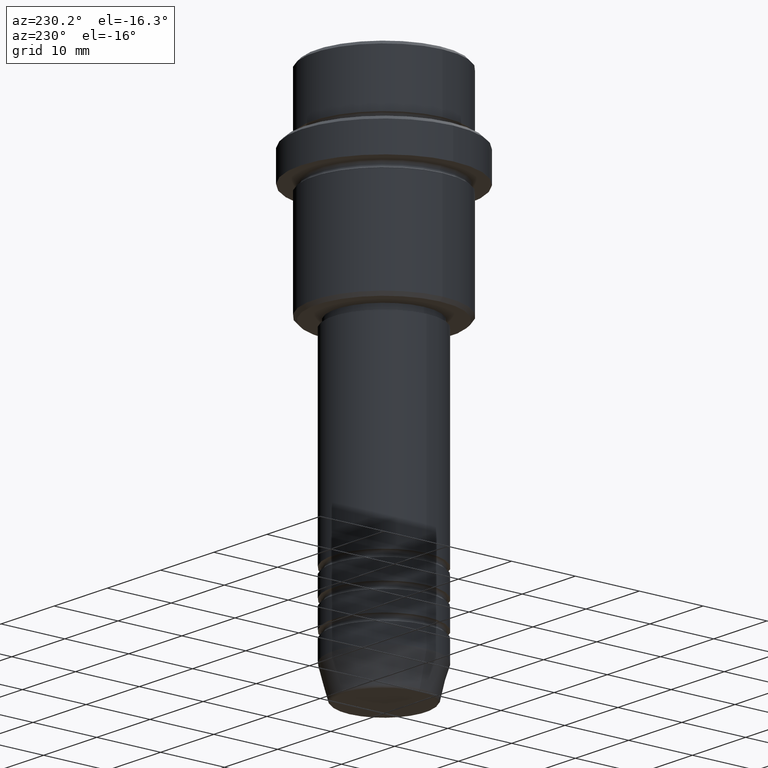
[diagram: clean part render]
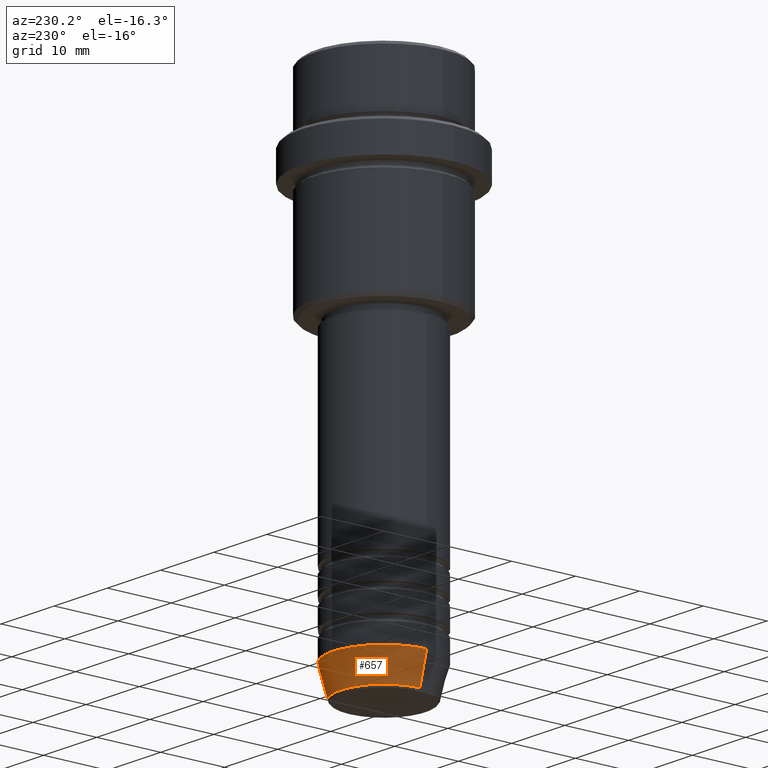
[diagram: same view with one face highlighted and labeled with its STEP entity id]
A machine part, auxiliary view. The second image highlights one B-rep face of the part: STEP entity #657.
In plain terms, the highlighted conical surface has half-angle 15 deg.
Its self-contained STEP definition (entity closure, byte-faithful):
#10 = CARTESIAN_POINT ( 'NONE',  ( -8.000000000000000000, 9.797174393178825657E-16, -75.00000000000001421 ) ) ;
#15 = VERTEX_POINT ( 'NONE', #431 ) ;
#29 = VECTOR ( 'NONE', #825, 1000.000000000000000 ) ;
#51 = VERTEX_POINT ( 'NONE', #661 ) ;
#73 = DIRECTION ( 'NONE',  ( -0.000000000000000000, -0.000000000000000000, 1.000000000000000000 ) ) ;
#100 = EDGE_LOOP ( 'NONE', ( #848, #1004, #755, #746 ) ) ;
#101 = VECTOR ( 'NONE', #1274, 1000.000000000000000 ) ;
#195 = LINE ( 'NONE', #1264, #29 ) ;
#246 = EDGE_CURVE ( 'NONE', #51, #481, #1128, .T. ) ;
#381 = CARTESIAN_POINT ( 'NONE',  ( -8.000000000000000000, 9.797174393178825657E-16, -75.00000000000001421 ) ) ;
#402 = LINE ( 'NONE', #381, #101 ) ;
#431 = CARTESIAN_POINT ( 'NONE',  ( 6.759553456999436882, 0.000000000000000000, -79.62940952255128479 ) ) ;
#481 = VERTEX_POINT ( 'NONE', #10 ) ;
#484 = DIRECTION ( 'NONE',  ( -0.000000000000000000, -0.000000000000000000, 1.000000000000000000 ) ) ;
#518 = DIRECTION ( 'NONE',  ( 1.000000000000000000, 0.000000000000000000, 0.000000000000000000 ) ) ;
#519 = CARTESIAN_POINT ( 'NONE',  ( 0.000000000000000000, 0.000000000000000000, -79.62940952255128479 ) ) ;
#578 = AXIS2_PLACEMENT_3D ( 'NONE', #519, #1284, #1415 ) ;
#657 = ADVANCED_FACE ( 'NONE', ( #1271 ), #1290, .T. ) ;
#661 = CARTESIAN_POINT ( 'NONE',  ( 8.000000000000000000, 0.000000000000000000, -75.00000000000001421 ) ) ;
#705 = DIRECTION ( 'NONE',  ( 1.000000000000000000, 0.000000000000000000, 0.000000000000000000 ) ) ;
#746 = ORIENTED_EDGE ( 'NONE', *, *, #955, .F. ) ;
#755 = ORIENTED_EDGE ( 'NONE', *, *, #246, .F. ) ;
#825 = DIRECTION ( 'NONE',  ( 0.2588190451025213501, 0.000000000000000000, 0.9659258262890680902 ) ) ;
#848 = ORIENTED_EDGE ( 'NONE', *, *, #1259, .T. ) ;
#920 = EDGE_CURVE ( 'NONE', #1097, #481, #402, .T. ) ;
#923 = AXIS2_PLACEMENT_3D ( 'NONE', #1351, #73, #518 ) ;
#936 = CARTESIAN_POINT ( 'NONE',  ( -6.759553456999437770, 9.037619948979308185E-16, -79.62940952255128479 ) ) ;
#955 = EDGE_CURVE ( 'NONE', #15, #51, #195, .T. ) ;
#990 = AXIS2_PLACEMENT_3D ( 'NONE', #1159, #484, #705 ) ;
#1004 = ORIENTED_EDGE ( 'NONE', *, *, #920, .T. ) ;
#1097 = VERTEX_POINT ( 'NONE', #936 ) ;
#1128 = CIRCLE ( 'NONE', #923, 8.000000000000000000 ) ;
#1159 = CARTESIAN_POINT ( 'NONE',  ( 0.000000000000000000, 0.000000000000000000, -75.00000000000001421 ) ) ;
#1196 = CIRCLE ( 'NONE', #578, 6.759553456999436882 ) ;
#1259 = EDGE_CURVE ( 'NONE', #15, #1097, #1196, .T. ) ;
#1264 = CARTESIAN_POINT ( 'NONE',  ( 8.000000000000000000, 0.000000000000000000, -75.00000000000001421 ) ) ;
#1271 = FACE_OUTER_BOUND ( 'NONE', #100, .T. ) ;
#1274 = DIRECTION ( 'NONE',  ( -0.2588190451025213501, 3.169619151431772337E-17, 0.9659258262890680902 ) ) ;
#1284 = DIRECTION ( 'NONE',  ( -0.000000000000000000, -0.000000000000000000, 1.000000000000000000 ) ) ;
#1290 = CONICAL_SURFACE ( 'NONE', #990, 8.000000000000000000, 0.2617993877991500740 ) ;
#1351 = CARTESIAN_POINT ( 'NONE',  ( 0.000000000000000000, 0.000000000000000000, -75.00000000000001421 ) ) ;
#1415 = DIRECTION ( 'NONE',  ( 1.000000000000000000, 0.000000000000000000, 0.000000000000000000 ) ) ;